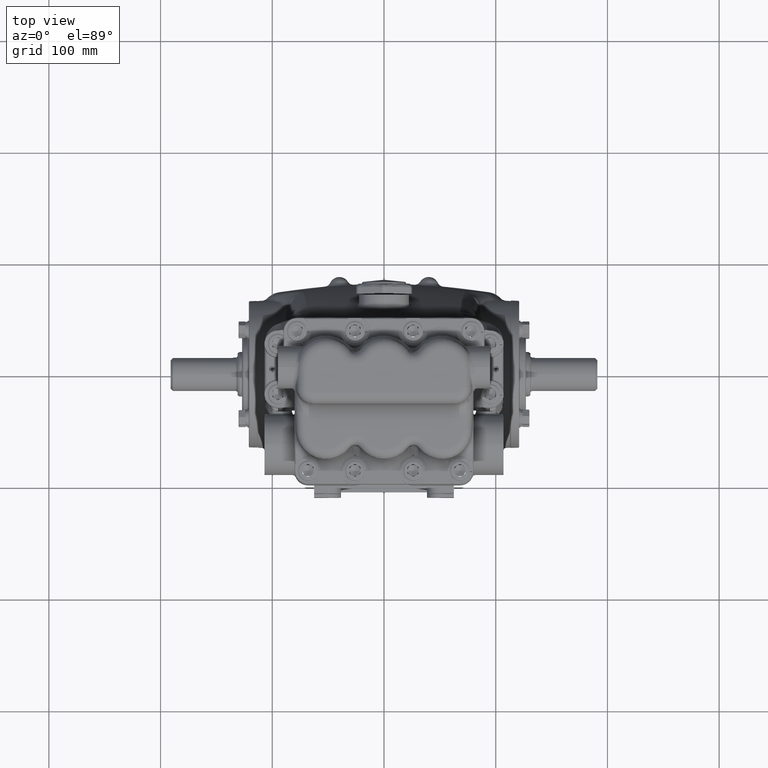
[diagram: clean part render]
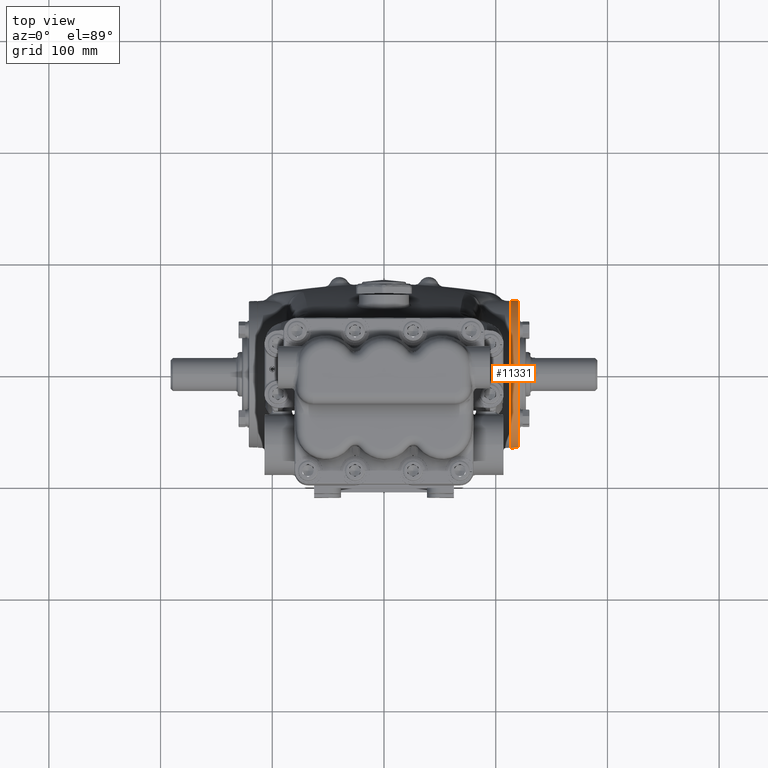
[diagram: same view with one face highlighted and labeled with its STEP entity id]
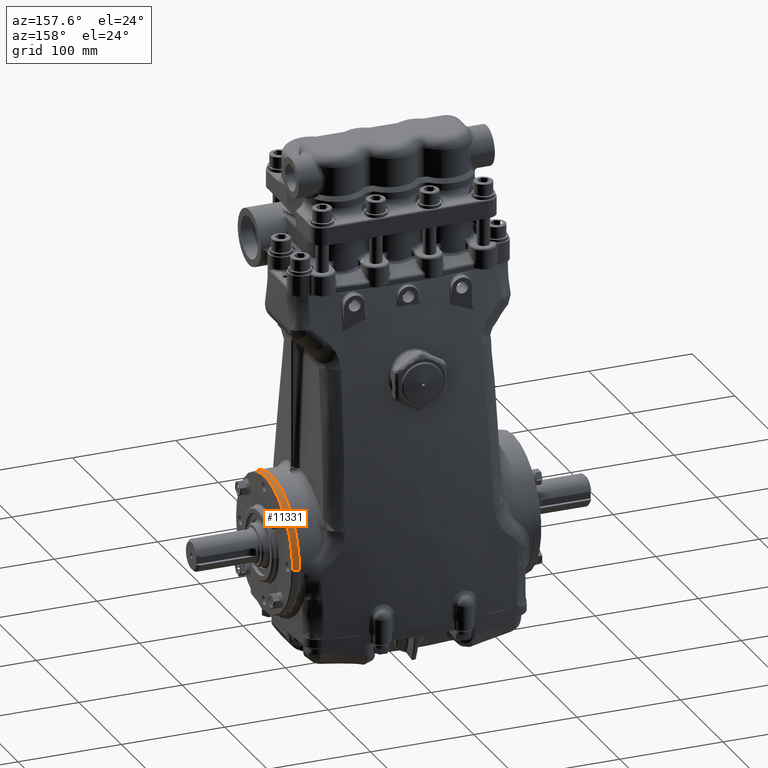
[diagram: same view with one face highlighted and labeled with its STEP entity id]
A machine part, top view. The second image highlights one B-rep face of the part: STEP entity #11331.
A second angle (auxiliary view) of the same face is appended — the face is thin or edge-on in the first view.
In plain terms, the highlighted conical surface has half-angle 2 deg.
Its self-contained STEP definition (entity closure, byte-faithful):
#1218 = CARTESIAN_POINT ( 'NONE',  ( 4.468491945413760824, 2.597738198883807748, -4.494637766216031931E-17 ) ) ;
#5946 = VERTEX_POINT ( 'NONE', #1218 ) ;
#8964 = ORIENTED_EDGE ( 'NONE', *, *, #108297, .F. ) ;
#9320 = AXIS2_PLACEMENT_3D ( 'NONE', #83633, #101927, #32720 ) ;
#11331 = ADVANCED_FACE ( 'NONE', ( #47435 ), #17015, .T. ) ;
#16641 = CARTESIAN_POINT ( 'NONE',  ( 4.468491945413759936, -2.597738198883809524, 2.731847993664263218E-16 ) ) ;
#17015 = CONICAL_SURFACE ( 'NONE', #31473, 2.598425196850393970, 0.03490658503988080391 ) ;
#20537 = CARTESIAN_POINT ( 'NONE',  ( 4.448818897637795367, -2.598425196850394414, -4.503051064824029420E-17 ) ) ;
#20626 = CARTESIAN_POINT ( 'NONE',  ( 4.448818897637796255, -2.742903441013623481E-16, 2.731847993664263218E-16 ) ) ;
#23220 = VERTEX_POINT ( 'NONE', #16641 ) ;
#25768 = CARTESIAN_POINT ( 'NONE',  ( 4.725783444752075013, 2.588753381743230886, 2.731847993664263218E-16 ) ) ;
#28702 = ORIENTED_EDGE ( 'NONE', *, *, #99804, .T. ) ;
#31473 = AXIS2_PLACEMENT_3D ( 'NONE', #20626, #82333, #108083 ) ;
#31914 = VERTEX_POINT ( 'NONE', #25768 ) ;
#32249 = EDGE_LOOP ( 'NONE', ( #8964, #57712, #28702, #49994 ) ) ;
#32720 = DIRECTION ( 'NONE',  ( -2.103251201247360165E-16, -1.000000000000000000, 0.000000000000000000 ) ) ;
#34818 = CARTESIAN_POINT ( 'NONE',  ( 4.725783444752075013, -3.082075985193306336E-16, 2.731847993664263218E-16 ) ) ;
#35670 = EDGE_CURVE ( 'NONE', #50664, #31914, #96098, .T. ) ;
#40341 = VECTOR ( 'NONE', #53146, 39.37007874015748143 ) ;
#43402 = DIRECTION ( 'NONE',  ( -1.000000000000000000, 1.224606353822377258E-16, 0.000000000000000000 ) ) ;
#47435 = FACE_OUTER_BOUND ( 'NONE', #32249, .T. ) ;
#47728 = VECTOR ( 'NONE', #63400, 39.37007874015748143 ) ;
#48620 = AXIS2_PLACEMENT_3D ( 'NONE', #34818, #43402, #87438 ) ;
#49994 = ORIENTED_EDGE ( 'NONE', *, *, #107810, .T. ) ;
#50664 = VERTEX_POINT ( 'NONE', #90657 ) ;
#53146 = DIRECTION ( 'NONE',  ( -0.9993908270190959842, 0.03489949670249531399, 0.000000000000000000 ) ) ;
#57712 = ORIENTED_EDGE ( 'NONE', *, *, #35670, .T. ) ;
#60505 = CIRCLE ( 'NONE', #9320, 2.597738198883809524 ) ;
#63400 = DIRECTION ( 'NONE',  ( -0.9993908270190959842, -0.03489949670249506419, -4.273955692856433828E-18 ) ) ;
#73645 = LINE ( 'NONE', #20537, #47728 ) ;
#82333 = DIRECTION ( 'NONE',  ( -1.000000000000000000, 1.224606353822377258E-16, 0.000000000000000000 ) ) ;
#83633 = CARTESIAN_POINT ( 'NONE',  ( 4.468491945413759936, -2.766995180319129614E-16, 2.731847993664263218E-16 ) ) ;
#87438 = DIRECTION ( 'NONE',  ( -2.110550980197792347E-16, -1.000000000000000000, 0.000000000000000000 ) ) ;
#90657 = CARTESIAN_POINT ( 'NONE',  ( 4.725783444752074125, -2.588753381743231774, -4.439621628455376673E-17 ) ) ;
#96064 = CARTESIAN_POINT ( 'NONE',  ( 4.448818897637796255, 2.598425196850393526, 2.731847993664263218E-16 ) ) ;
#96098 = CIRCLE ( 'NONE', #48620, 2.588753381743231330 ) ;
#99804 = EDGE_CURVE ( 'NONE', #31914, #5946, #106870, .T. ) ;
#101927 = DIRECTION ( 'NONE',  ( 1.000000000000000000, -1.224606353822377258E-16, -0.000000000000000000 ) ) ;
#106870 = LINE ( 'NONE', #96064, #40341 ) ;
#107810 = EDGE_CURVE ( 'NONE', #5946, #23220, #60505, .T. ) ;
#108083 = DIRECTION ( 'NONE',  ( 2.102695122396129669E-16, 1.000000000000000000, 0.000000000000000000 ) ) ;
#108297 = EDGE_CURVE ( 'NONE', #50664, #23220, #73645, .T. ) ;